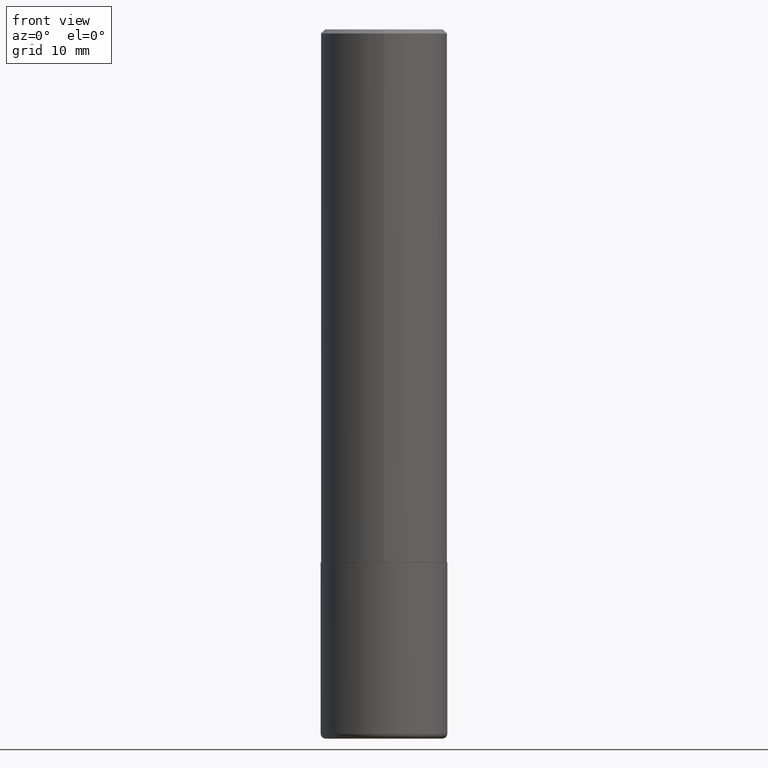
[diagram: clean part render]
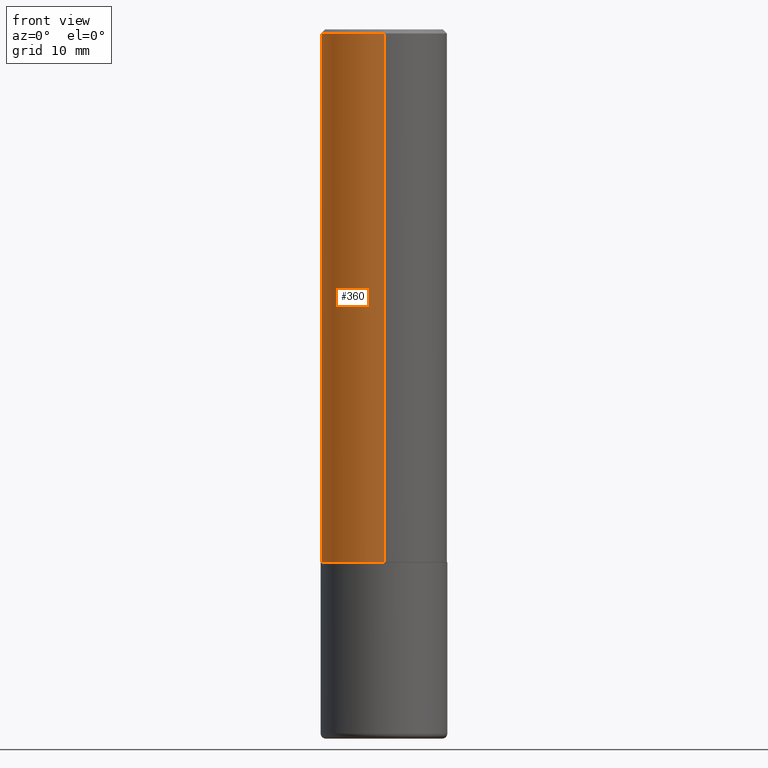
[diagram: same view with one face highlighted and labeled with its STEP entity id]
A machine part, front view. The second image highlights one B-rep face of the part: STEP entity #360.
In plain terms, the highlighted cylindrical surface (partial cylindrical patch) has radius 7.9375 mm, axis along (-0, 0, 1).
Its self-contained STEP definition (entity closure, byte-faithful):
#26 = DIRECTION ( 'NONE',  ( -6.982962677686265133E-15, -1.000000000000000000, 3.496765431890256920E-15 ) ) ;
#55 = VERTEX_POINT ( 'NONE', #348 ) ;
#56 = LINE ( 'NONE', #409, #407 ) ;
#82 = CARTESIAN_POINT ( 'NONE',  ( 6.431534631686015280E-29, -9.175671598579269369E-15, -2.629000000000000448 ) ) ;
#85 = FACE_OUTER_BOUND ( 'NONE', #164, .T. ) ;
#110 = DIRECTION ( 'NONE',  ( -6.982962677686265922E-15, -1.000000000000000000, 3.496765431890253764E-15 ) ) ;
#120 = AXIS2_PLACEMENT_3D ( 'NONE', #344, #182, #26 ) ;
#126 = LINE ( 'NONE', #383, #199 ) ;
#132 = VERTEX_POINT ( 'NONE', #317 ) ;
#136 = EDGE_CURVE ( 'NONE', #398, #132, #351, .T. ) ;
#143 = EDGE_CURVE ( 'NONE', #55, #390, #358, .T. ) ;
#151 = DIRECTION ( 'NONE',  ( -2.446380613041465709E-29, 3.490175579528058691E-15, 1.000000000000000000 ) ) ;
#164 = EDGE_LOOP ( 'NONE', ( #275, #260, #247, #338 ) ) ;
#167 = AXIS2_PLACEMENT_3D ( 'NONE', #82, #151, #110 ) ;
#182 = DIRECTION ( 'NONE',  ( -2.446380613041465709E-29, 3.490175579528058691E-15, 1.000000000000000000 ) ) ;
#199 = VECTOR ( 'NONE', #356, 39.37007874015748143 ) ;
#215 = CYLINDRICAL_SURFACE ( 'NONE', #340, 0.3125000000000001665 ) ;
#231 = CARTESIAN_POINT ( 'NONE',  ( 2.182175836776958741E-15, 0.3124999999999999445, -0.02000000000000116268 ) ) ;
#247 = ORIENTED_EDGE ( 'NONE', *, *, #346, .T. ) ;
#250 = DIRECTION ( 'NONE',  ( -2.446380613041465709E-29, 3.490175579528058691E-15, 1.000000000000000000 ) ) ;
#256 = CARTESIAN_POINT ( 'NONE',  ( 0.000000000000000000, 0.000000000000000000, 0.000000000000000000 ) ) ;
#260 = ORIENTED_EDGE ( 'NONE', *, *, #143, .T. ) ;
#275 = ORIENTED_EDGE ( 'NONE', *, *, #373, .F. ) ;
#317 = CARTESIAN_POINT ( 'NONE',  ( -2.143905624303602824E-15, -0.3125000000000000555, -0.01999999999999897693 ) ) ;
#319 = CARTESIAN_POINT ( 'NONE',  ( -2.182175836776895633E-15, -0.3125000000000094369, -2.628999999999999115 ) ) ;
#338 = ORIENTED_EDGE ( 'NONE', *, *, #136, .F. ) ;
#340 = AXIS2_PLACEMENT_3D ( 'NONE', #256, #381, #352 ) ;
#344 = CARTESIAN_POINT ( 'NONE',  ( 4.892761226082948269E-31, -6.980351159056141343E-17, -0.02000000000000006981 ) ) ;
#346 = EDGE_CURVE ( 'NONE', #390, #132, #56, .T. ) ;
#348 = CARTESIAN_POINT ( 'NONE',  ( 2.220446049250346607E-15, 0.3124999999999911182, -2.629000000000001336 ) ) ;
#351 = CIRCLE ( 'NONE', #120, 0.3125000000000000000 ) ;
#352 = DIRECTION ( 'NONE',  ( -6.982962677686265133E-15, -1.000000000000000000, 3.490175579528058691E-15 ) ) ;
#356 = DIRECTION ( 'NONE',  ( -2.446380613041465709E-29, 3.490175579528058691E-15, 1.000000000000000000 ) ) ;
#358 = CIRCLE ( 'NONE', #167, 0.3125000000000002776 ) ;
#360 = ADVANCED_FACE ( 'NONE', ( #85 ), #215, .T. ) ;
#373 = EDGE_CURVE ( 'NONE', #55, #398, #126, .T. ) ;
#381 = DIRECTION ( 'NONE',  ( -2.446380613041465709E-29, 3.490175579528058691E-15, 1.000000000000000000 ) ) ;
#383 = CARTESIAN_POINT ( 'NONE',  ( 2.220446049250313475E-15, 0.3125000000000001665, -1.090679868602518933E-15 ) ) ;
#390 = VERTEX_POINT ( 'NONE', #319 ) ;
#398 = VERTEX_POINT ( 'NONE', #231 ) ;
#407 = VECTOR ( 'NONE', #250, 39.37007874015748143 ) ;
#409 = CARTESIAN_POINT ( 'NONE',  ( -2.182175836776959136E-15, -0.3125000000000001665, 1.090679868602518933E-15 ) ) ;